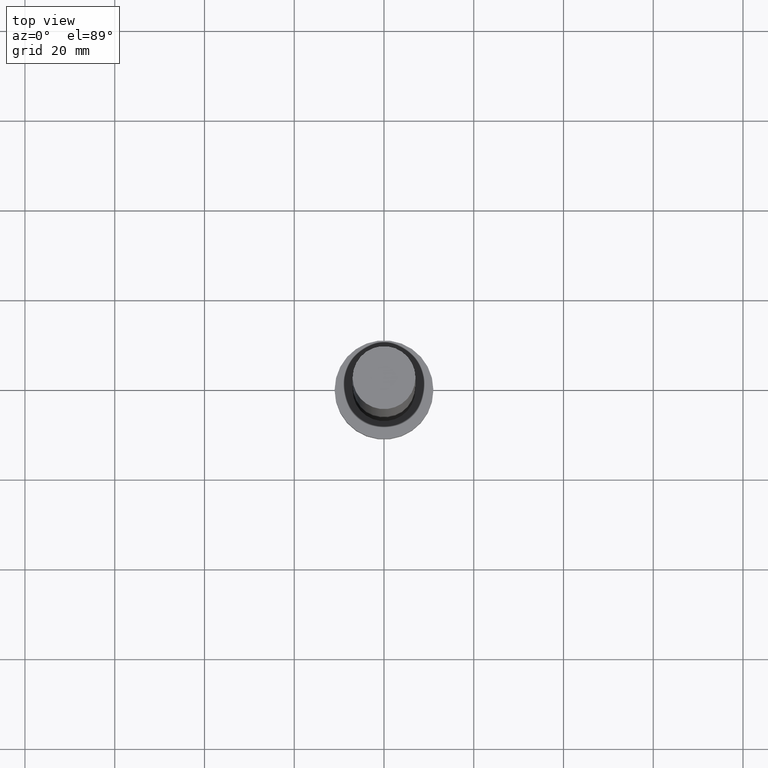
[diagram: clean part render]
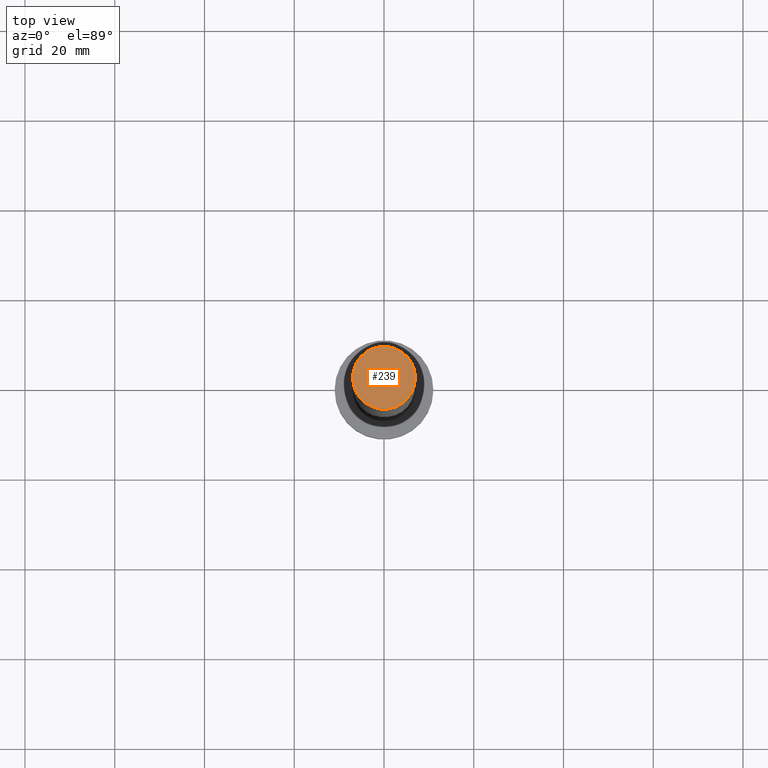
[diagram: same view with one face highlighted and labeled with its STEP entity id]
A machine part, top view. The second image highlights one B-rep face of the part: STEP entity #239.
In plain terms, the highlighted planar face has unit normal (0, 0, 1).
Its self-contained STEP definition (entity closure, byte-faithful):
#11 = DIRECTION ( 'NONE',  ( 0.000000000000000000, 0.000000000000000000, 1.000000000000000000 ) ) ;
#20 = FACE_OUTER_BOUND ( 'NONE', #114, .T. ) ;
#21 = VERTEX_POINT ( 'NONE', #83 ) ;
#24 = DIRECTION ( 'NONE',  ( 0.000000000000000000, 0.000000000000000000, 1.000000000000000000 ) ) ;
#33 = AXIS2_PLACEMENT_3D ( 'NONE', #121, #11, #251 ) ;
#35 = EDGE_CURVE ( 'NONE', #21, #97, #148, .T. ) ;
#40 = CARTESIAN_POINT ( 'NONE',  ( 0.000000000000000000, 0.000000000000000000, 160.0000000000000000 ) ) ;
#42 = ORIENTED_EDGE ( 'NONE', *, *, #163, .T. ) ;
#45 = CARTESIAN_POINT ( 'NONE',  ( 0.000000000000000000, 0.000000000000000000, 160.0000000000000000 ) ) ;
#58 = AXIS2_PLACEMENT_3D ( 'NONE', #45, #24, #98 ) ;
#65 = ORIENTED_EDGE ( 'NONE', *, *, #35, .T. ) ;
#83 = CARTESIAN_POINT ( 'NONE',  ( 7.000000000000000888, 8.572527594031474176E-16, 160.0000000000000000 ) ) ;
#97 = VERTEX_POINT ( 'NONE', #203 ) ;
#98 = DIRECTION ( 'NONE',  ( 1.000000000000000000, 0.000000000000000000, 0.000000000000000000 ) ) ;
#114 = EDGE_LOOP ( 'NONE', ( #42, #65 ) ) ;
#121 = CARTESIAN_POINT ( 'NONE',  ( 0.000000000000000000, 0.000000000000000000, 160.0000000000000000 ) ) ;
#143 = DIRECTION ( 'NONE',  ( 1.000000000000000000, 0.000000000000000000, -0.000000000000000000 ) ) ;
#148 = CIRCLE ( 'NONE', #58, 7.000000000000000888 ) ;
#163 = EDGE_CURVE ( 'NONE', #97, #21, #221, .T. ) ;
#169 = AXIS2_PLACEMENT_3D ( 'NONE', #40, #188, #143 ) ;
#188 = DIRECTION ( 'NONE',  ( 0.000000000000000000, 0.000000000000000000, 1.000000000000000000 ) ) ;
#203 = CARTESIAN_POINT ( 'NONE',  ( -7.000000000000000888, 0.000000000000000000, 160.0000000000000000 ) ) ;
#211 = PLANE ( 'NONE',  #169 ) ;
#221 = CIRCLE ( 'NONE', #33, 7.000000000000000888 ) ;
#239 = ADVANCED_FACE ( 'NONE', ( #20 ), #211, .T. ) ;
#251 = DIRECTION ( 'NONE',  ( 1.000000000000000000, 0.000000000000000000, 0.000000000000000000 ) ) ;